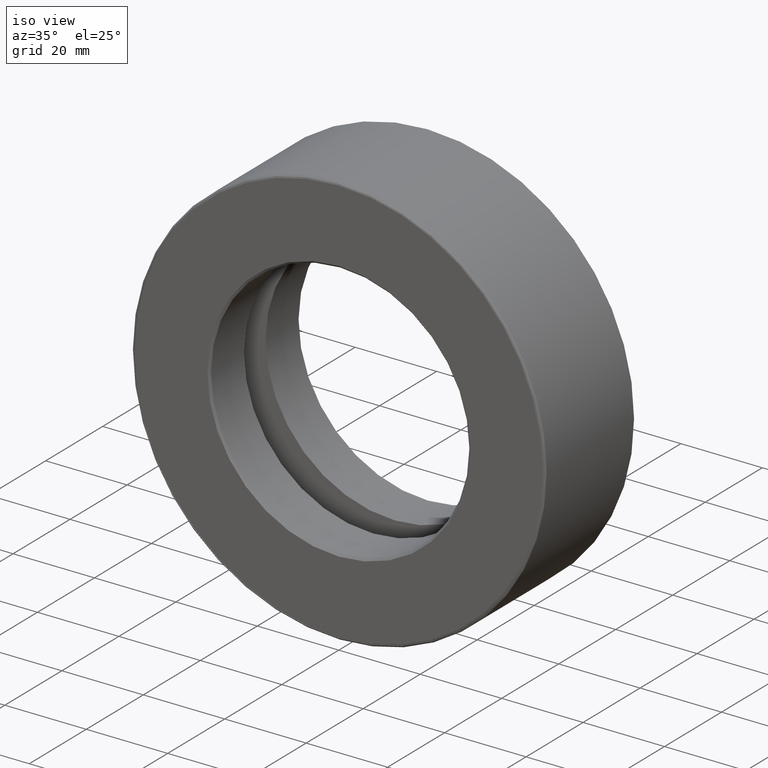
[diagram: clean part render]
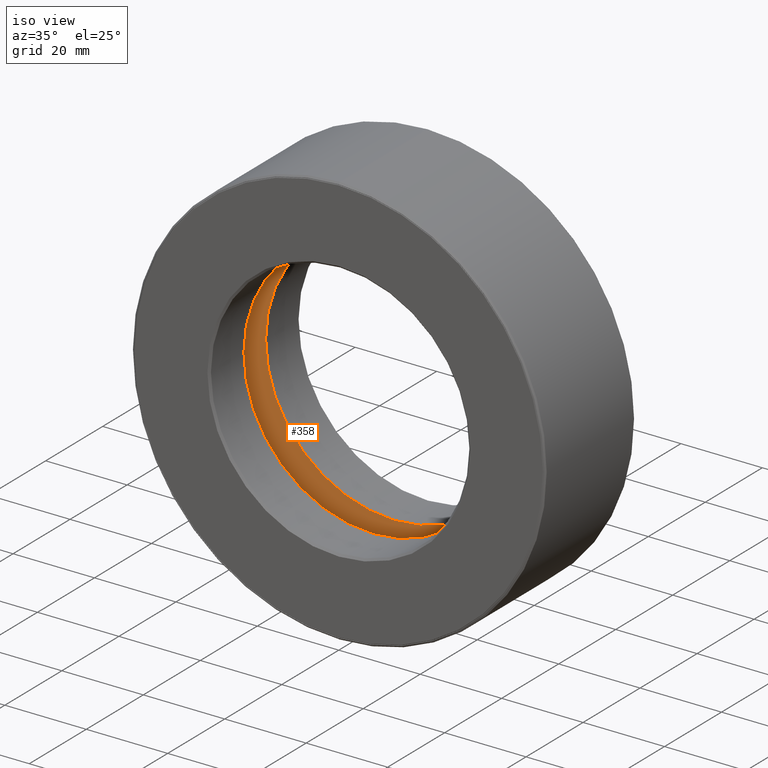
[diagram: same view with one face highlighted and labeled with its STEP entity id]
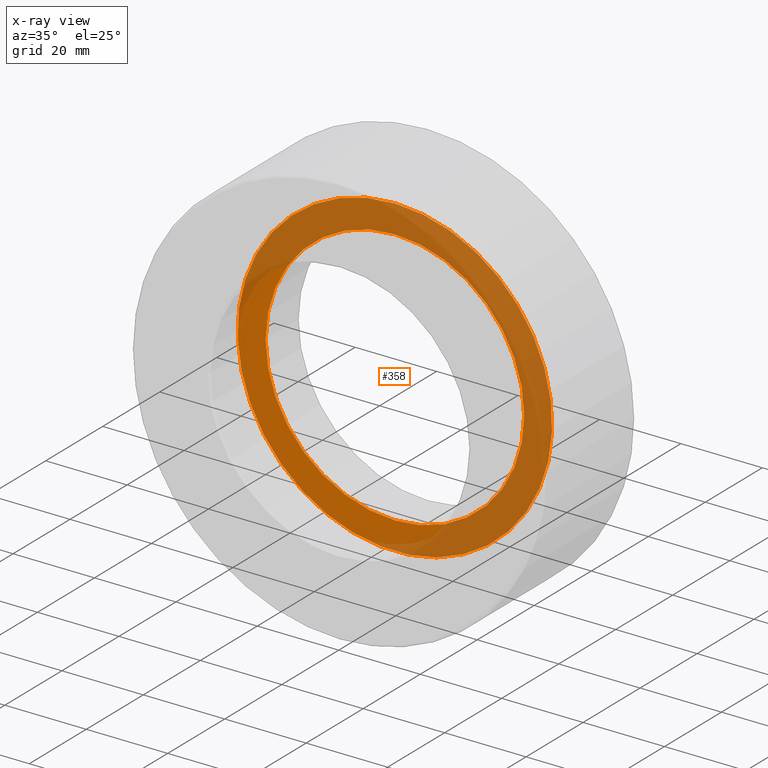
[diagram: x-ray of the same camera — body ghosted, the highlighted face saturated]
A machine part, iso view. The second image highlights one B-rep face of the part: STEP entity #358.
The next image is the same camera in x-ray: the body ghosted, the highlighted face saturated — about 67% of this face is hidden behind the body in this view.
In plain terms, the highlighted planar face has unit normal (0, -1, 0).
Its self-contained STEP definition (entity closure, byte-faithful):
#39 = DIRECTION ( 'NONE',  ( 0.0000000000000000000, -1.000000000000000000, 0.0000000000000000000 ) ) ;
#75 = CARTESIAN_POINT ( 'NONE',  ( 0.0000000000000000000, 0.7749999999999998000, 1.250000000000000000 ) ) ;
#76 = DIRECTION ( 'NONE',  ( 0.0000000000000000000, 0.0000000000000000000, 1.000000000000000000 ) ) ;
#81 = FACE_OUTER_BOUND ( 'NONE', #99, .T. ) ;
#97 = CIRCLE ( 'NONE', #398, 1.250000000000000000 ) ;
#99 = EDGE_LOOP ( 'NONE', ( #111 ) ) ;
#111 = ORIENTED_EDGE ( 'NONE', *, *, #382, .F. ) ;
#135 = DIRECTION ( 'NONE',  ( -0.0000000000000000000, 1.000000000000000000, -0.0000000000000000000 ) ) ;
#168 = DIRECTION ( 'NONE',  ( -0.0000000000000000000, 1.000000000000000000, -0.0000000000000000000 ) ) ;
#171 = CARTESIAN_POINT ( 'NONE',  ( 3.906240212342812500E-016, 0.7749999999999998000, 0.0000000000000000000 ) ) ;
#194 = EDGE_LOOP ( 'NONE', ( #297 ) ) ;
#275 = VERTEX_POINT ( 'NONE', #75 ) ;
#276 = FACE_BOUND ( 'NONE', #194, .T. ) ;
#297 = ORIENTED_EDGE ( 'NONE', *, *, #302, .T. ) ;
#302 = EDGE_CURVE ( 'NONE', #275, #275, #97, .T. ) ;
#310 = VERTEX_POINT ( 'NONE', #342 ) ;
#342 = CARTESIAN_POINT ( 'NONE',  ( 0.0000000000000000000, 0.7749999999999999100, 1.520999999999999700 ) ) ;
#347 = DIRECTION ( 'NONE',  ( 0.0000000000000000000, -0.0000000000000000000, -1.000000000000000000 ) ) ;
#354 = DIRECTION ( 'NONE',  ( 0.0000000000000000000, 0.0000000000000000000, 1.000000000000000000 ) ) ;
#358 = ADVANCED_FACE ( 'NONE', ( #276, #81 ), #388, .T. ) ;
#382 = EDGE_CURVE ( 'NONE', #310, #310, #579, .T. ) ;
#387 = AXIS2_PLACEMENT_3D ( 'NONE', #400, #135, #354 ) ;
#388 = PLANE ( 'NONE',  #406 ) ;
#398 = AXIS2_PLACEMENT_3D ( 'NONE', #527, #168, #76 ) ;
#400 = CARTESIAN_POINT ( 'NONE',  ( 0.0000000000000000000, 0.7749999999999999100, 0.0000000000000000000 ) ) ;
#406 = AXIS2_PLACEMENT_3D ( 'NONE', #171, #39, #347 ) ;
#527 = CARTESIAN_POINT ( 'NONE',  ( 0.0000000000000000000, 0.7749999999999998000, 0.0000000000000000000 ) ) ;
#579 = CIRCLE ( 'NONE', #387, 1.520999999999999700 ) ;